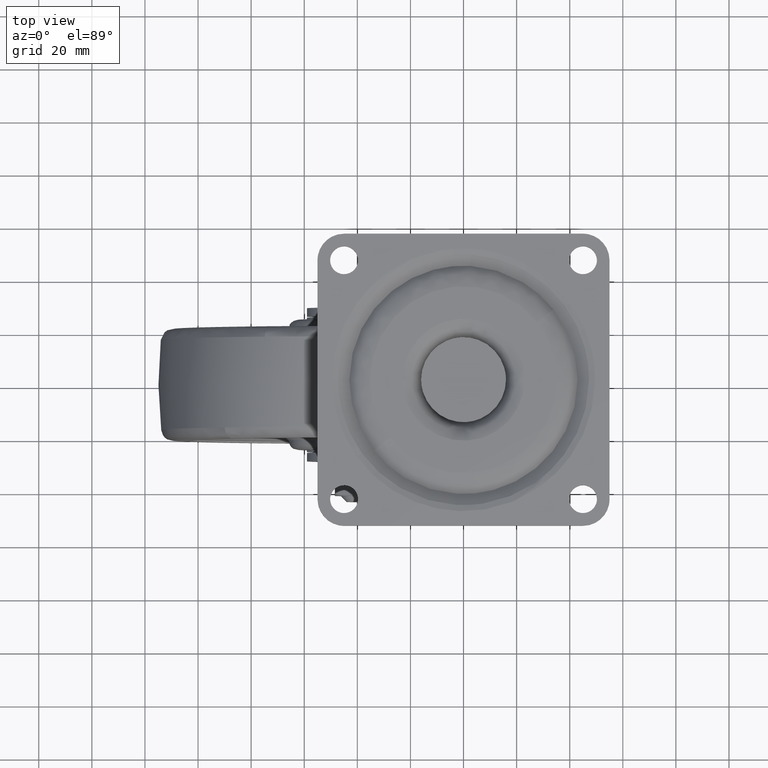
[diagram: clean part render]
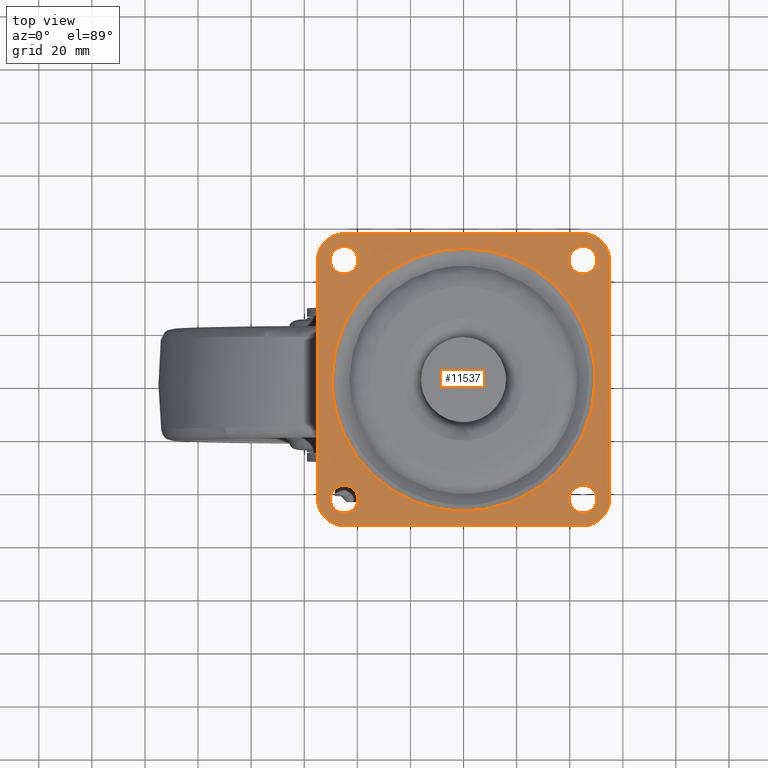
[diagram: same view with one face highlighted and labeled with its STEP entity id]
A machine part, top view. The second image highlights one B-rep face of the part: STEP entity #11537.
In plain terms, the highlighted face is a freeform B-spline surface patch.
Its self-contained STEP definition (entity closure, byte-faithful):
#10269=CARTESIAN_POINT('',(-45.320504832834530,39.759792308302110,-2.081668E-017));
#10270=VERTEX_POINT('',#10269);
#10276=CARTESIAN_POINT('',(-39.750000000000000,45.0,0.0));
#10277=VERTEX_POINT('',#10276);
#10278=CARTESIAN_POINT('',(-45.320504832834530,39.759792308302117,0.0));
#10279=CARTESIAN_POINT('',(-45.160402007456241,39.749999999999993,0.0));
#10280=CARTESIAN_POINT('',(-45.0,39.750000000000000,0.0));
#10281=CARTESIAN_POINT('',(-39.750000000000000,39.750000000000000,0.0));
#10282=CARTESIAN_POINT('',(-39.750000000000000,45.0,0.0));
#10290=(BOUNDED_CURVE()B_SPLINE_CURVE(2,(#10278,#10279,#10280,#10281,#10282),.UNSPECIFIED.,.F.,.U.)B_SPLINE_CURVE_WITH_KNOTS((3,2,3),(0.239332962232863,0.250000000000000,0.500000000000000),.UNSPECIFIED.)CURVE()GEOMETRIC_REPRESENTATION_ITEM()RATIONAL_B_SPLINE_CURVE((0.976072041653687,0.987502787892714,1.0,0.707106781186547,1.0))REPRESENTATION_ITEM(''));
#10291=EDGE_CURVE('',#10270,#10277,#10290,.T.);
#10293=CARTESIAN_POINT('',(-44.679495167165470,50.240207691697883,-2.081668E-017));
#10294=VERTEX_POINT('',#10293);
#10295=CARTESIAN_POINT('',(-39.750000000000000,45.0,0.0));
#10296=CARTESIAN_POINT('',(-39.749999999999986,49.938706850993775,0.0));
#10297=CARTESIAN_POINT('',(-44.679495167165470,50.240207691697890,0.0));
#10305=(BOUNDED_CURVE()B_SPLINE_CURVE(2,(#10295,#10296,#10297),.UNSPECIFIED.,.F.,.U.)B_SPLINE_CURVE_WITH_KNOTS((3,3),(0.500000000000000,0.739332962232863),.UNSPECIFIED.)CURVE()GEOMETRIC_REPRESENTATION_ITEM()RATIONAL_B_SPLINE_CURVE((1.0,0.719603993293833,0.976072041653687))REPRESENTATION_ITEM(''));
#10306=EDGE_CURVE('',#10277,#10294,#10305,.T.);
#10380=CARTESIAN_POINT('',(-50.249999999999993,45.0,0.0));
#10381=VERTEX_POINT('',#10380);
#10382=CARTESIAN_POINT('',(-44.679495167165470,50.240207691697890,0.0));
#10383=CARTESIAN_POINT('',(-44.839597992543759,50.249999999999993,0.0));
#10384=CARTESIAN_POINT('',(-45.0,50.249999999999993,0.0));
#10385=CARTESIAN_POINT('',(-50.249999999999986,50.249999999999986,0.0));
#10386=CARTESIAN_POINT('',(-50.249999999999993,45.0,0.0));
#10394=(BOUNDED_CURVE()B_SPLINE_CURVE(2,(#10382,#10383,#10384,#10385,#10386),.UNSPECIFIED.,.F.,.U.)B_SPLINE_CURVE_WITH_KNOTS((3,2,3),(0.739332962232863,0.750000000000000,1.0),.UNSPECIFIED.)CURVE()GEOMETRIC_REPRESENTATION_ITEM()RATIONAL_B_SPLINE_CURVE((0.976072041653687,0.987502787892714,1.0,0.707106781186547,1.0))REPRESENTATION_ITEM(''));
#10395=EDGE_CURVE('',#10294,#10381,#10394,.T.);
#10397=CARTESIAN_POINT('',(-50.249999999999993,45.0,0.0));
#10398=CARTESIAN_POINT('',(-50.249999999999993,40.061293149006218,0.0));
#10399=CARTESIAN_POINT('',(-45.320504832834537,39.759792308302117,0.0));
#10407=(BOUNDED_CURVE()B_SPLINE_CURVE(2,(#10397,#10398,#10399),.UNSPECIFIED.,.F.,.U.)B_SPLINE_CURVE_WITH_KNOTS((3,3),(0.0,0.239332962232863),.UNSPECIFIED.)CURVE()GEOMETRIC_REPRESENTATION_ITEM()RATIONAL_B_SPLINE_CURVE((1.0,0.719603993293834,0.976072041653687))REPRESENTATION_ITEM(''));
#10408=EDGE_CURVE('',#10381,#10270,#10407,.T.);
#10451=CARTESIAN_POINT('',(44.679495167165470,39.759792308302110,-2.081668E-017));
#10452=VERTEX_POINT('',#10451);
#10458=CARTESIAN_POINT('',(50.249999999999993,45.0,0.0));
#10459=VERTEX_POINT('',#10458);
#10460=CARTESIAN_POINT('',(44.679495167165470,39.759792308302117,0.0));
#10461=CARTESIAN_POINT('',(44.839597992543752,39.750000000000000,0.0));
#10462=CARTESIAN_POINT('',(45.0,39.750000000000000,0.0));
#10463=CARTESIAN_POINT('',(50.249999999999986,39.750000000000000,0.0));
#10464=CARTESIAN_POINT('',(50.249999999999993,45.0,0.0));
#10472=(BOUNDED_CURVE()B_SPLINE_CURVE(2,(#10460,#10461,#10462,#10463,#10464),.UNSPECIFIED.,.F.,.U.)B_SPLINE_CURVE_WITH_KNOTS((3,2,3),(0.239332962232863,0.250000000000000,0.500000000000000),.UNSPECIFIED.)CURVE()GEOMETRIC_REPRESENTATION_ITEM()RATIONAL_B_SPLINE_CURVE((0.976072041653687,0.987502787892714,1.0,0.707106781186547,1.0))REPRESENTATION_ITEM(''));
#10473=EDGE_CURVE('',#10452,#10459,#10472,.T.);
#10475=CARTESIAN_POINT('',(45.320504832834530,50.240207691697890,-2.081668E-017));
#10476=VERTEX_POINT('',#10475);
#10477=CARTESIAN_POINT('',(50.249999999999993,45.0,0.0));
#10478=CARTESIAN_POINT('',(50.249999999999993,49.938706850993775,0.0));
#10479=CARTESIAN_POINT('',(45.320504832834523,50.240207691697890,0.0));
#10487=(BOUNDED_CURVE()B_SPLINE_CURVE(2,(#10477,#10478,#10479),.UNSPECIFIED.,.F.,.U.)B_SPLINE_CURVE_WITH_KNOTS((3,3),(0.500000000000000,0.739332962232863),.UNSPECIFIED.)CURVE()GEOMETRIC_REPRESENTATION_ITEM()RATIONAL_B_SPLINE_CURVE((1.0,0.719603993293833,0.976072041653687))REPRESENTATION_ITEM(''));
#10488=EDGE_CURVE('',#10459,#10476,#10487,.T.);
#10562=CARTESIAN_POINT('',(39.750000000000000,45.0,0.0));
#10563=VERTEX_POINT('',#10562);
#10564=CARTESIAN_POINT('',(45.320504832834523,50.240207691697890,0.0));
#10565=CARTESIAN_POINT('',(45.160402007456241,50.249999999999993,0.0));
#10566=CARTESIAN_POINT('',(45.0,50.249999999999993,0.0));
#10567=CARTESIAN_POINT('',(39.750000000000000,50.249999999999986,0.0));
#10568=CARTESIAN_POINT('',(39.750000000000000,45.0,0.0));
#10576=(BOUNDED_CURVE()B_SPLINE_CURVE(2,(#10564,#10565,#10566,#10567,#10568),.UNSPECIFIED.,.F.,.U.)B_SPLINE_CURVE_WITH_KNOTS((3,2,3),(0.739332962232863,0.750000000000000,1.0),.UNSPECIFIED.)CURVE()GEOMETRIC_REPRESENTATION_ITEM()RATIONAL_B_SPLINE_CURVE((0.976072041653687,0.987502787892714,1.0,0.707106781186547,1.0))REPRESENTATION_ITEM(''));
#10577=EDGE_CURVE('',#10476,#10563,#10576,.T.);
#10579=CARTESIAN_POINT('',(39.750000000000000,45.0,0.0));
#10580=CARTESIAN_POINT('',(39.749999999999993,40.061293149006204,0.0));
#10581=CARTESIAN_POINT('',(44.679495167165484,39.759792308302124,0.0));
#10589=(BOUNDED_CURVE()B_SPLINE_CURVE(2,(#10579,#10580,#10581),.UNSPECIFIED.,.F.,.U.)B_SPLINE_CURVE_WITH_KNOTS((3,3),(0.0,0.239332962232863),.UNSPECIFIED.)CURVE()GEOMETRIC_REPRESENTATION_ITEM()RATIONAL_B_SPLINE_CURVE((1.0,0.719603993293833,0.976072041653687))REPRESENTATION_ITEM(''));
#10590=EDGE_CURVE('',#10563,#10452,#10589,.T.);
#10633=CARTESIAN_POINT('',(44.679495167165470,-50.240207691697890,-2.081668E-017));
#10634=VERTEX_POINT('',#10633);
#10640=CARTESIAN_POINT('',(50.249999999999993,-45.0,0.0));
#10641=VERTEX_POINT('',#10640);
#10642=CARTESIAN_POINT('',(44.679495167165470,-50.240207691697897,0.0));
#10643=CARTESIAN_POINT('',(44.839597992543752,-50.249999999999993,0.0));
#10644=CARTESIAN_POINT('',(45.0,-50.249999999999993,0.0));
#10645=CARTESIAN_POINT('',(50.249999999999986,-50.249999999999986,0.0));
#10646=CARTESIAN_POINT('',(50.249999999999993,-45.0,0.0));
#10654=(BOUNDED_CURVE()B_SPLINE_CURVE(2,(#10642,#10643,#10644,#10645,#10646),.UNSPECIFIED.,.F.,.U.)B_SPLINE_CURVE_WITH_KNOTS((3,2,3),(0.239332962232863,0.250000000000000,0.500000000000000),.UNSPECIFIED.)CURVE()GEOMETRIC_REPRESENTATION_ITEM()RATIONAL_B_SPLINE_CURVE((0.976072041653687,0.987502787892714,1.0,0.707106781186547,1.0))REPRESENTATION_ITEM(''));
#10655=EDGE_CURVE('',#10634,#10641,#10654,.T.);
#10657=CARTESIAN_POINT('',(45.320504832834530,-39.759792308302110,-2.081668E-017));
#10658=VERTEX_POINT('',#10657);
#10659=CARTESIAN_POINT('',(50.249999999999993,-45.0,0.0));
#10660=CARTESIAN_POINT('',(50.249999999999993,-40.061293149006211,0.0));
#10661=CARTESIAN_POINT('',(45.320504832834523,-39.759792308302110,0.0));
#10669=(BOUNDED_CURVE()B_SPLINE_CURVE(2,(#10659,#10660,#10661),.UNSPECIFIED.,.F.,.U.)B_SPLINE_CURVE_WITH_KNOTS((3,3),(0.500000000000000,0.739332962232863),.UNSPECIFIED.)CURVE()GEOMETRIC_REPRESENTATION_ITEM()RATIONAL_B_SPLINE_CURVE((1.0,0.719603993293833,0.976072041653687))REPRESENTATION_ITEM(''));
#10670=EDGE_CURVE('',#10641,#10658,#10669,.T.);
#10744=CARTESIAN_POINT('',(39.750000000000000,-45.0,0.0));
#10745=VERTEX_POINT('',#10744);
#10746=CARTESIAN_POINT('',(45.320504832834530,-39.759792308302117,0.0));
#10747=CARTESIAN_POINT('',(45.160402007456241,-39.750000000000000,0.0));
#10748=CARTESIAN_POINT('',(45.0,-39.750000000000000,0.0));
#10749=CARTESIAN_POINT('',(39.750000000000000,-39.750000000000000,0.0));
#10750=CARTESIAN_POINT('',(39.750000000000000,-45.0,0.0));
#10758=(BOUNDED_CURVE()B_SPLINE_CURVE(2,(#10746,#10747,#10748,#10749,#10750),.UNSPECIFIED.,.F.,.U.)B_SPLINE_CURVE_WITH_KNOTS((3,2,3),(0.739332962232863,0.750000000000000,1.0),.UNSPECIFIED.)CURVE()GEOMETRIC_REPRESENTATION_ITEM()RATIONAL_B_SPLINE_CURVE((0.976072041653687,0.987502787892714,1.0,0.707106781186547,1.0))REPRESENTATION_ITEM(''));
#10759=EDGE_CURVE('',#10658,#10745,#10758,.T.);
#10761=CARTESIAN_POINT('',(39.750000000000000,-45.0,0.0));
#10762=CARTESIAN_POINT('',(39.749999999999993,-49.938706850993782,0.0));
#10763=CARTESIAN_POINT('',(44.679495167165484,-50.240207691697883,0.0));
#10771=(BOUNDED_CURVE()B_SPLINE_CURVE(2,(#10761,#10762,#10763),.UNSPECIFIED.,.F.,.U.)B_SPLINE_CURVE_WITH_KNOTS((3,3),(0.0,0.239332962232863),.UNSPECIFIED.)CURVE()GEOMETRIC_REPRESENTATION_ITEM()RATIONAL_B_SPLINE_CURVE((1.0,0.719603993293833,0.976072041653687))REPRESENTATION_ITEM(''));
#10772=EDGE_CURVE('',#10745,#10634,#10771,.T.);
#10815=CARTESIAN_POINT('',(-45.320504832834530,-50.240207691697890,-2.081668E-017));
#10816=VERTEX_POINT('',#10815);
#10822=CARTESIAN_POINT('',(-39.750000000000000,-45.0,0.0));
#10823=VERTEX_POINT('',#10822);
#10824=CARTESIAN_POINT('',(-45.320504832834523,-50.240207691697890,0.0));
#10825=CARTESIAN_POINT('',(-45.160402007456241,-50.249999999999993,0.0));
#10826=CARTESIAN_POINT('',(-45.0,-50.249999999999993,0.0));
#10827=CARTESIAN_POINT('',(-39.750000000000000,-50.249999999999986,0.0));
#10828=CARTESIAN_POINT('',(-39.750000000000000,-45.0,0.0));
#10836=(BOUNDED_CURVE()B_SPLINE_CURVE(2,(#10824,#10825,#10826,#10827,#10828),.UNSPECIFIED.,.F.,.U.)B_SPLINE_CURVE_WITH_KNOTS((3,2,3),(0.239332962232863,0.250000000000000,0.500000000000000),.UNSPECIFIED.)CURVE()GEOMETRIC_REPRESENTATION_ITEM()RATIONAL_B_SPLINE_CURVE((0.976072041653687,0.987502787892714,1.0,0.707106781186547,1.0))REPRESENTATION_ITEM(''));
#10837=EDGE_CURVE('',#10816,#10823,#10836,.T.);
#10839=CARTESIAN_POINT('',(-44.679495167165463,-39.759792308302110,-2.081668E-017));
#10840=VERTEX_POINT('',#10839);
#10841=CARTESIAN_POINT('',(-39.750000000000000,-45.0,0.0));
#10842=CARTESIAN_POINT('',(-39.749999999999993,-40.061293149006232,0.0));
#10843=CARTESIAN_POINT('',(-44.679495167165463,-39.759792308302103,0.0));
#10851=(BOUNDED_CURVE()B_SPLINE_CURVE(2,(#10841,#10842,#10843),.UNSPECIFIED.,.F.,.U.)B_SPLINE_CURVE_WITH_KNOTS((3,3),(0.500000000000000,0.739332962232863),.UNSPECIFIED.)CURVE()GEOMETRIC_REPRESENTATION_ITEM()RATIONAL_B_SPLINE_CURVE((1.0,0.719603993293834,0.976072041653687))REPRESENTATION_ITEM(''));
#10852=EDGE_CURVE('',#10823,#10840,#10851,.T.);
#10926=CARTESIAN_POINT('',(-50.249999999999993,-45.0,0.0));
#10927=VERTEX_POINT('',#10926);
#10928=CARTESIAN_POINT('',(-44.679495167165470,-39.759792308302117,0.0));
#10929=CARTESIAN_POINT('',(-44.839597992543759,-39.750000000000000,0.0));
#10930=CARTESIAN_POINT('',(-45.0,-39.750000000000000,0.0));
#10931=CARTESIAN_POINT('',(-50.249999999999986,-39.750000000000000,0.0));
#10932=CARTESIAN_POINT('',(-50.249999999999993,-45.0,0.0));
#10940=(BOUNDED_CURVE()B_SPLINE_CURVE(2,(#10928,#10929,#10930,#10931,#10932),.UNSPECIFIED.,.F.,.U.)B_SPLINE_CURVE_WITH_KNOTS((3,2,3),(0.739332962232863,0.750000000000000,1.0),.UNSPECIFIED.)CURVE()GEOMETRIC_REPRESENTATION_ITEM()RATIONAL_B_SPLINE_CURVE((0.976072041653687,0.987502787892714,1.0,0.707106781186547,1.0))REPRESENTATION_ITEM(''));
#10941=EDGE_CURVE('',#10840,#10927,#10940,.T.);
#10943=CARTESIAN_POINT('',(-50.249999999999993,-45.0,0.0));
#10944=CARTESIAN_POINT('',(-50.249999999999993,-49.938706850993775,0.0));
#10945=CARTESIAN_POINT('',(-45.320504832834523,-50.240207691697876,0.0));
#10953=(BOUNDED_CURVE()B_SPLINE_CURVE(2,(#10943,#10944,#10945),.UNSPECIFIED.,.F.,.U.)B_SPLINE_CURVE_WITH_KNOTS((3,3),(0.0,0.239332962232863),.UNSPECIFIED.)CURVE()GEOMETRIC_REPRESENTATION_ITEM()RATIONAL_B_SPLINE_CURVE((1.0,0.719603993293833,0.976072041653687))REPRESENTATION_ITEM(''));
#10954=EDGE_CURVE('',#10927,#10816,#10953,.T.);
#10992=CARTESIAN_POINT('',(-28.604408186504639,40.429371069285978,-6.544722E-016));
#10993=VERTEX_POINT('',#10992);
#11007=CARTESIAN_POINT('',(-49.525207852676203,1.421085E-014,0.0));
#11008=VERTEX_POINT('',#11007);
#11009=CARTESIAN_POINT('',(-49.525207852676203,1.421085E-014,0.0));
#11010=CARTESIAN_POINT('',(-49.525207852406254,25.627580257778288,-3.272361E-016));
#11011=CARTESIAN_POINT('',(-28.604408186504635,40.429371069285978,-6.544722E-016));
#11019=(BOUNDED_CURVE()B_SPLINE_CURVE(2,(#11009,#11010,#11011),.UNSPECIFIED.,.F.,.U.)B_SPLINE_CURVE_WITH_KNOTS((3,3),(0.0,0.150659173411619),.UNSPECIFIED.)CURVE()GEOMETRIC_REPRESENTATION_ITEM()RATIONAL_B_SPLINE_CURVE((1.0,0.823491799022787,0.859724235322365))REPRESENTATION_ITEM(''));
#11020=EDGE_CURVE('',#11008,#10993,#11019,.T.);
#11022=CARTESIAN_POINT('',(28.604408186504639,-40.429371069285949,-5.949747E-016));
#11023=VERTEX_POINT('',#11022);
#11024=CARTESIAN_POINT('',(28.604408186504635,-40.429371069285949,-5.949747E-016));
#11025=CARTESIAN_POINT('',(15.748384105477886,-49.525207851975871,-5.460240E-016));
#11026=CARTESIAN_POINT('',(-4.096389E-010,-49.525207852097203,-4.514268E-016));
#11027=CARTESIAN_POINT('',(-49.525207852815896,-49.525207852478744,-1.539394E-016));
#11028=CARTESIAN_POINT('',(-49.525207852676203,1.421085E-014,0.0));
#11036=(BOUNDED_CURVE()B_SPLINE_CURVE(2,(#11024,#11025,#11026,#11027,#11028),.UNSPECIFIED.,.F.,.U.)B_SPLINE_CURVE_WITH_KNOTS((3,2,3),(0.650659173411619,0.750000000000000,1.0),.UNSPECIFIED.)CURVE()GEOMETRIC_REPRESENTATION_ITEM()RATIONAL_B_SPLINE_CURVE((0.859724235322365,0.883614982163760,1.0,0.707106781186547,1.0))REPRESENTATION_ITEM(''));
#11037=EDGE_CURVE('',#11023,#11008,#11036,.T.);
#11086=CARTESIAN_POINT('',(49.525207852676203,1.421085E-014,0.0));
#11087=VERTEX_POINT('',#11086);
#11088=CARTESIAN_POINT('',(49.525207852676203,1.421085E-014,0.0));
#11089=CARTESIAN_POINT('',(49.525207852406254,-25.627580257778249,-2.974874E-016));
#11090=CARTESIAN_POINT('',(28.604408186504635,-40.429371069285949,-5.949747E-016));
#11098=(BOUNDED_CURVE()B_SPLINE_CURVE(2,(#11088,#11089,#11090),.UNSPECIFIED.,.F.,.U.)B_SPLINE_CURVE_WITH_KNOTS((3,3),(0.500000000000000,0.650659173411619),.UNSPECIFIED.)CURVE()GEOMETRIC_REPRESENTATION_ITEM()RATIONAL_B_SPLINE_CURVE((1.0,0.823491799022787,0.859724235322365))REPRESENTATION_ITEM(''));
#11099=EDGE_CURVE('',#11087,#11023,#11098,.T.);
#11101=CARTESIAN_POINT('',(-28.604408186504635,40.429371069285978,-6.544722E-016));
#11102=CARTESIAN_POINT('',(-15.748384105477896,49.525207851975914,-6.006264E-016));
#11103=CARTESIAN_POINT('',(4.096389E-010,49.525207852097232,-4.965695E-016));
#11104=CARTESIAN_POINT('',(49.525207852815896,49.525207852478786,-1.693334E-016));
#11105=CARTESIAN_POINT('',(49.525207852676203,1.421085E-014,0.0));
#11113=(BOUNDED_CURVE()B_SPLINE_CURVE(2,(#11101,#11102,#11103,#11104,#11105),.UNSPECIFIED.,.F.,.U.)B_SPLINE_CURVE_WITH_KNOTS((3,2,3),(0.150659173411619,0.250000000000000,0.500000000000000),.UNSPECIFIED.)CURVE()GEOMETRIC_REPRESENTATION_ITEM()RATIONAL_B_SPLINE_CURVE((0.859724235322365,0.883614982163760,1.0,0.707106781186547,1.0))REPRESENTATION_ITEM(''));
#11114=EDGE_CURVE('',#10993,#11087,#11113,.T.);
#11253=CARTESIAN_POINT('',(55.0,-45.0,0.0));
#11254=VERTEX_POINT('',#11253);
#11255=CARTESIAN_POINT('',(55.0,45.0,0.0));
#11256=VERTEX_POINT('',#11255);
#11257=CARTESIAN_POINT('',(55.0,-45.0,0.0));
#11258=CARTESIAN_POINT('',(55.0,45.0,0.0));
#11259=QUASI_UNIFORM_CURVE('',1,(#11257,#11258),.UNSPECIFIED.,.F.,.U.);
#11260=EDGE_CURVE('',#11254,#11256,#11259,.T.);
#11290=CARTESIAN_POINT('',(45.0,-55.0,0.0));
#11291=VERTEX_POINT('',#11290);
#11292=CARTESIAN_POINT('',(45.0,-55.0,0.0));
#11293=CARTESIAN_POINT('',(55.000000000000007,-55.000000000000007,0.0));
#11294=CARTESIAN_POINT('',(55.0,-45.0,0.0));
#11302=(BOUNDED_CURVE()B_SPLINE_CURVE(2,(#11292,#11293,#11294),.UNSPECIFIED.,.F.,.U.)CURVE()GEOMETRIC_REPRESENTATION_ITEM()QUASI_UNIFORM_CURVE()RATIONAL_B_SPLINE_CURVE((1.0,0.707106781186548,1.0))REPRESENTATION_ITEM(''));
#11303=EDGE_CURVE('',#11291,#11254,#11302,.T.);
#11320=CARTESIAN_POINT('',(-45.0,-55.0,0.0));
#11321=VERTEX_POINT('',#11320);
#11322=CARTESIAN_POINT('',(-45.0,-55.0,0.0));
#11323=CARTESIAN_POINT('',(45.0,-55.0,0.0));
#11324=QUASI_UNIFORM_CURVE('',1,(#11322,#11323),.UNSPECIFIED.,.F.,.U.);
#11325=EDGE_CURVE('',#11321,#11291,#11324,.T.);
#11351=CARTESIAN_POINT('',(-55.0,-45.0,0.0));
#11352=VERTEX_POINT('',#11351);
#11353=CARTESIAN_POINT('',(-55.0,-45.0,0.0));
#11354=CARTESIAN_POINT('',(-55.000000000000007,-55.000000000000007,0.0));
#11355=CARTESIAN_POINT('',(-45.0,-55.0,0.0));
#11363=(BOUNDED_CURVE()B_SPLINE_CURVE(2,(#11353,#11354,#11355),.UNSPECIFIED.,.F.,.U.)CURVE()GEOMETRIC_REPRESENTATION_ITEM()QUASI_UNIFORM_CURVE()RATIONAL_B_SPLINE_CURVE((1.0,0.707106781186548,1.0))REPRESENTATION_ITEM(''));
#11364=EDGE_CURVE('',#11352,#11321,#11363,.T.);
#11381=CARTESIAN_POINT('',(-55.0,45.0,0.0));
#11382=VERTEX_POINT('',#11381);
#11383=CARTESIAN_POINT('',(-55.0,45.0,0.0));
#11384=CARTESIAN_POINT('',(-55.0,-45.0,0.0));
#11385=QUASI_UNIFORM_CURVE('',1,(#11383,#11384),.UNSPECIFIED.,.F.,.U.);
#11386=EDGE_CURVE('',#11382,#11352,#11385,.T.);
#11412=CARTESIAN_POINT('',(-45.0,55.0,0.0));
#11413=VERTEX_POINT('',#11412);
#11414=CARTESIAN_POINT('',(-45.0,55.0,0.0));
#11415=CARTESIAN_POINT('',(-55.000000000000007,55.000000000000007,0.0));
#11416=CARTESIAN_POINT('',(-55.0,45.0,0.0));
#11424=(BOUNDED_CURVE()B_SPLINE_CURVE(2,(#11414,#11415,#11416),.UNSPECIFIED.,.F.,.U.)CURVE()GEOMETRIC_REPRESENTATION_ITEM()QUASI_UNIFORM_CURVE()RATIONAL_B_SPLINE_CURVE((1.0,0.707106781186548,1.0))REPRESENTATION_ITEM(''));
#11425=EDGE_CURVE('',#11413,#11382,#11424,.T.);
#11442=CARTESIAN_POINT('',(45.0,55.0,0.0));
#11443=VERTEX_POINT('',#11442);
#11444=CARTESIAN_POINT('',(45.0,55.0,0.0));
#11445=CARTESIAN_POINT('',(-45.0,55.0,0.0));
#11446=QUASI_UNIFORM_CURVE('',1,(#11444,#11445),.UNSPECIFIED.,.F.,.U.);
#11447=EDGE_CURVE('',#11443,#11413,#11446,.T.);
#11473=CARTESIAN_POINT('',(55.0,45.0,0.0));
#11474=CARTESIAN_POINT('',(55.000000000000007,55.000000000000007,0.0));
#11475=CARTESIAN_POINT('',(45.0,55.0,0.0));
#11483=(BOUNDED_CURVE()B_SPLINE_CURVE(2,(#11473,#11474,#11475),.UNSPECIFIED.,.F.,.U.)CURVE()GEOMETRIC_REPRESENTATION_ITEM()QUASI_UNIFORM_CURVE()RATIONAL_B_SPLINE_CURVE((1.0,0.707106781186548,1.0))REPRESENTATION_ITEM(''));
#11484=EDGE_CURVE('',#11256,#11443,#11483,.T.);
#11492=CARTESIAN_POINT('',(-60.494499786798663,60.494499786798663,0.0));
#11493=CARTESIAN_POINT('',(60.494502737228572,60.494499786798663,0.0));
#11494=CARTESIAN_POINT('',(-60.494499786798663,-60.494502737228572,0.0));
#11495=CARTESIAN_POINT('',(60.494502737228572,-60.494502737228572,0.0));
#11496=B_SPLINE_SURFACE_WITH_KNOTS('',1,1,((#11492,#11494),(#11493,#11495)),.UNSPECIFIED.,.F.,.F.,.U.,(2,2),(2,2),(0.0,120.989002524027200),(0.0,120.989002524027200),.UNSPECIFIED.);
#11497=ORIENTED_EDGE('',*,*,#11484,.T.);
#11498=ORIENTED_EDGE('',*,*,#11447,.T.);
#11499=ORIENTED_EDGE('',*,*,#11425,.T.);
#11500=ORIENTED_EDGE('',*,*,#11386,.T.);
#11501=ORIENTED_EDGE('',*,*,#11364,.T.);
#11502=ORIENTED_EDGE('',*,*,#11325,.T.);
#11503=ORIENTED_EDGE('',*,*,#11303,.T.);
#11504=ORIENTED_EDGE('',*,*,#11260,.T.);
#11505=EDGE_LOOP('',(#11497,#11498,#11499,#11500,#11501,#11502,#11503,#11504));
#11506=FACE_OUTER_BOUND('',#11505,.T.);
#11507=ORIENTED_EDGE('',*,*,#11020,.T.);
#11508=ORIENTED_EDGE('',*,*,#11114,.T.);
#11509=ORIENTED_EDGE('',*,*,#11099,.T.);
#11510=ORIENTED_EDGE('',*,*,#11037,.T.);
#11511=EDGE_LOOP('',(#11507,#11508,#11509,#11510));
#11512=FACE_BOUND('',#11511,.T.);
#11513=ORIENTED_EDGE('',*,*,#10852,.F.);
#11514=ORIENTED_EDGE('',*,*,#10837,.F.);
#11515=ORIENTED_EDGE('',*,*,#10954,.F.);
#11516=ORIENTED_EDGE('',*,*,#10941,.F.);
#11517=EDGE_LOOP('',(#11513,#11514,#11515,#11516));
#11518=FACE_BOUND('',#11517,.T.);
#11519=ORIENTED_EDGE('',*,*,#10670,.F.);
#11520=ORIENTED_EDGE('',*,*,#10655,.F.);
#11521=ORIENTED_EDGE('',*,*,#10772,.F.);
#11522=ORIENTED_EDGE('',*,*,#10759,.F.);
#11523=EDGE_LOOP('',(#11519,#11520,#11521,#11522));
#11524=FACE_BOUND('',#11523,.T.);
#11525=ORIENTED_EDGE('',*,*,#10488,.F.);
#11526=ORIENTED_EDGE('',*,*,#10473,.F.);
#11527=ORIENTED_EDGE('',*,*,#10590,.F.);
#11528=ORIENTED_EDGE('',*,*,#10577,.F.);
#11529=EDGE_LOOP('',(#11525,#11526,#11527,#11528));
#11530=FACE_BOUND('',#11529,.T.);
#11531=ORIENTED_EDGE('',*,*,#10306,.F.);
#11532=ORIENTED_EDGE('',*,*,#10291,.F.);
#11533=ORIENTED_EDGE('',*,*,#10408,.F.);
#11534=ORIENTED_EDGE('',*,*,#10395,.F.);
#11535=EDGE_LOOP('',(#11531,#11532,#11533,#11534));
#11536=FACE_BOUND('',#11535,.T.);
#11537=ADVANCED_FACE('',(#11506,#11512,#11518,#11524,#11530,#11536),#11496,.F.);